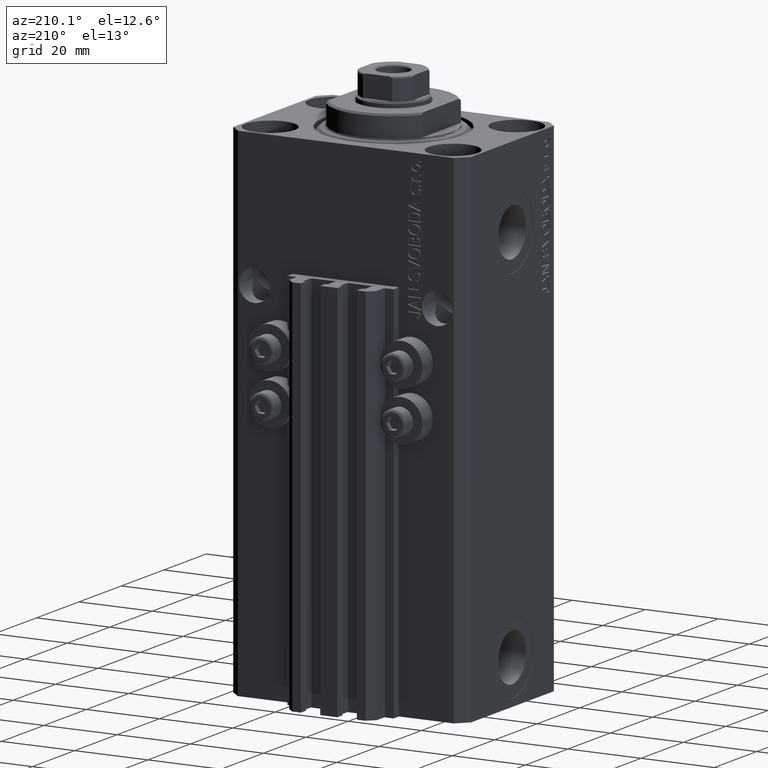
[diagram: clean part render]
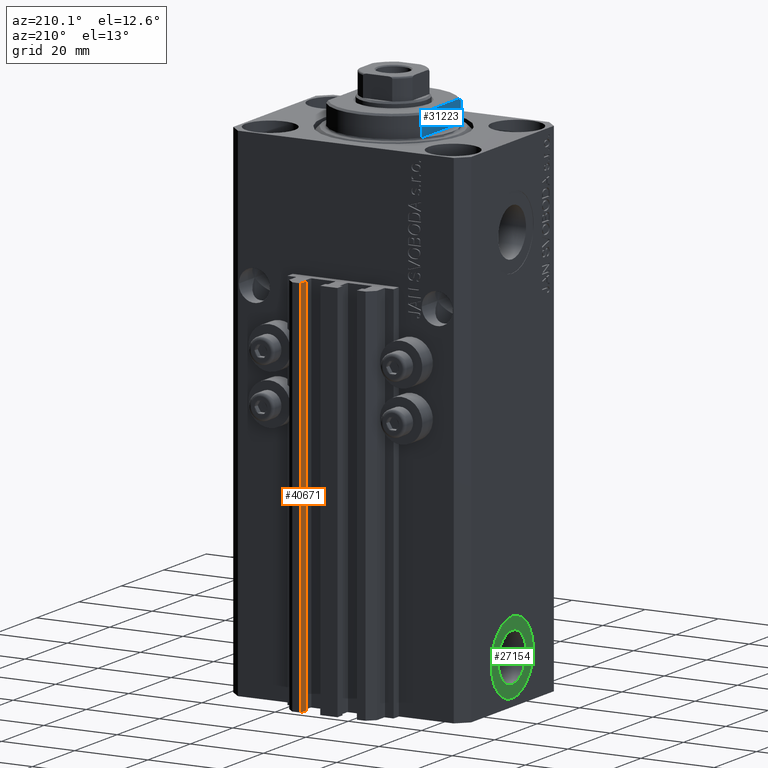
[diagram: same view with three faces highlighted in distinct colors, each labeled with its STEP entity id]
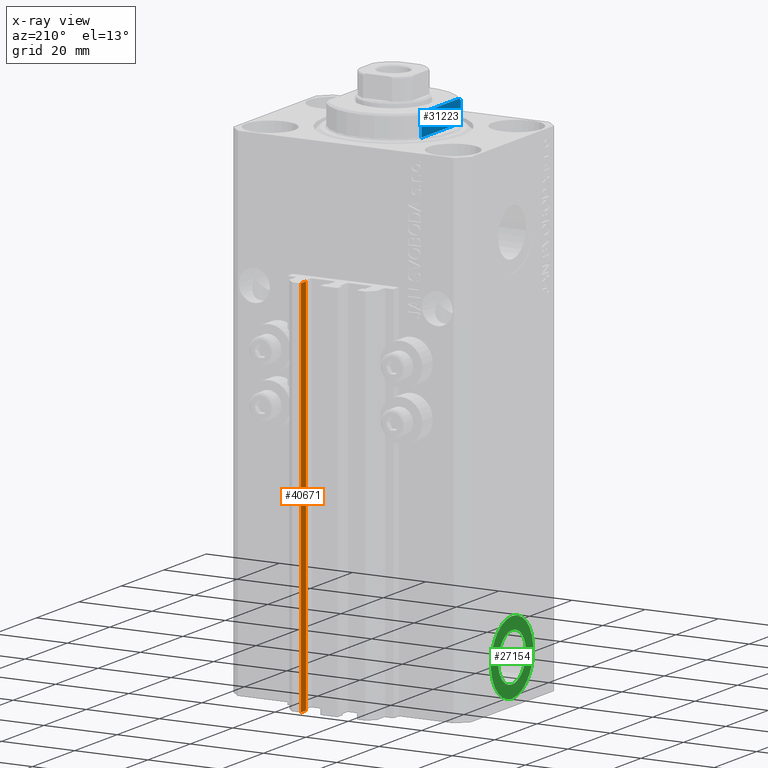
[diagram: x-ray of the same camera — body ghosted, the three highlighted faces saturated]
A machine part, auxiliary view with three faces highlighted in distinct colors.
The next image is the same camera in x-ray (body ghosted, the three faces saturated) — at least one of them is partly hidden behind the body in this view.
Their STEP definitions:

[orange] entity #40671 — the highlighted planar face has unit normal (-1, -0, 0).
#585 = ORIENTED_EDGE ( 'NONE', *, *, #30163, .T. ) ;
#1354 = CARTESIAN_POINT ( 'NONE',  ( 7.649999999999995026, 30.49999999999949196, -137.0000000000000000 ) ) ;
#1510 = ORIENTED_EDGE ( 'NONE', *, *, #45254, .T. ) ;
#4749 = EDGE_CURVE ( 'NONE', #39883, #4803, #15940, .T. ) ;
#4803 = VERTEX_POINT ( 'NONE', #19052 ) ;
#6301 = CARTESIAN_POINT ( 'NONE',  ( 7.649999999999995026, 30.49999999999949196, -33.00000000000000000 ) ) ;
#9889 = DIRECTION ( 'NONE',  ( 0.000000000000000000, 0.000000000000000000, 1.000000000000000000 ) ) ;
#14543 = VECTOR ( 'NONE', #24475, 1000.000000000000000 ) ;
#14730 = PLANE ( 'NONE',  #21658 ) ;
#15940 = LINE ( 'NONE', #44082, #43023 ) ;
#18310 = FACE_OUTER_BOUND ( 'NONE', #23100, .T. ) ;
#18539 = LINE ( 'NONE', #28794, #18569 ) ;
#18569 = VECTOR ( 'NONE', #40232, 1000.000000000000000 ) ;
#19052 = CARTESIAN_POINT ( 'NONE',  ( 7.649999999999995914, 28.09999999999950404, -33.00000000000000000 ) ) ;
#20677 = LINE ( 'NONE', #46873, #14543 ) ;
#21658 = AXIS2_PLACEMENT_3D ( 'NONE', #29276, #43816, #25693 ) ;
#22759 = ORIENTED_EDGE ( 'NONE', *, *, #4749, .F. ) ;
#23100 = EDGE_LOOP ( 'NONE', ( #22759, #32605, #1510, #585 ) ) ;
#24475 = DIRECTION ( 'NONE',  ( 3.614007241618365534E-16, -1.000000000000000000, 0.000000000000000000 ) ) ;
#25693 = DIRECTION ( 'NONE',  ( 3.614007241618365534E-16, -1.000000000000000000, 0.000000000000000000 ) ) ;
#28225 = VERTEX_POINT ( 'NONE', #34667 ) ;
#28794 = CARTESIAN_POINT ( 'NONE',  ( 7.649999999999995026, 30.49999999999949196, -137.0000000000000000 ) ) ;
#29276 = CARTESIAN_POINT ( 'NONE',  ( 7.649999999999995026, 30.49999999999949196, -137.0000000000000000 ) ) ;
#30163 = EDGE_CURVE ( 'NONE', #28225, #4803, #31841, .T. ) ;
#31841 = LINE ( 'NONE', #46376, #41987 ) ;
#32605 = ORIENTED_EDGE ( 'NONE', *, *, #39765, .F. ) ;
#34667 = CARTESIAN_POINT ( 'NONE',  ( 7.649999999999995914, 28.09999999999950404, -137.0000000000000000 ) ) ;
#36215 = VERTEX_POINT ( 'NONE', #1354 ) ;
#39765 = EDGE_CURVE ( 'NONE', #36215, #39883, #18539, .T. ) ;
#39883 = VERTEX_POINT ( 'NONE', #6301 ) ;
#40232 = DIRECTION ( 'NONE',  ( 0.000000000000000000, 0.000000000000000000, 1.000000000000000000 ) ) ;
#40671 = ADVANCED_FACE ( 'NONE', ( #18310 ), #14730, .T. ) ;
#41987 = VECTOR ( 'NONE', #9889, 1000.000000000000000 ) ;
#43023 = VECTOR ( 'NONE', #44565, 1000.000000000000000 ) ;
#43816 = DIRECTION ( 'NONE',  ( -1.000000000000000000, -3.614007241618365534E-16, 0.000000000000000000 ) ) ;
#44082 = CARTESIAN_POINT ( 'NONE',  ( 7.649999999999995026, 30.49999999999949196, -33.00000000000000000 ) ) ;
#44565 = DIRECTION ( 'NONE',  ( 3.614007241618365534E-16, -1.000000000000000000, 0.000000000000000000 ) ) ;
#45254 = EDGE_CURVE ( 'NONE', #36215, #28225, #20677, .T. ) ;
#46376 = CARTESIAN_POINT ( 'NONE',  ( 7.649999999999995914, 28.09999999999950404, -137.0000000000000000 ) ) ;
#46873 = CARTESIAN_POINT ( 'NONE',  ( 7.649999999999995026, 30.49999999999949196, -137.0000000000000000 ) ) ;

[blue] entity #31223 — the highlighted planar face has unit normal (-1, 0, 0).
#331 = DIRECTION ( 'NONE',  ( 1.000000000000000000, 0.000000000000000000, -0.000000000000000000 ) ) ;
#1114 = CARTESIAN_POINT ( 'NONE',  ( 13.00000000000000000, 8.440971508067137918, -6.500000000000000000 ) ) ;
#1597 = CARTESIAN_POINT ( 'NONE',  ( 13.00000000000000000, -9.327379053088815652, -6.000000000000030198 ) ) ;
#1963 = CARTESIAN_POINT ( 'NONE',  ( 13.00000000000000000, -8.440971508067137918, -6.500000000000000000 ) ) ;
#2447 = ORIENTED_EDGE ( 'NONE', *, *, #19374, .T. ) ;
#3683 = B_SPLINE_CURVE_WITH_KNOTS ( 'NONE', 3,
 ( #27839, #5170, #38111, #1597 ),
 .UNSPECIFIED., .F., .F.,
 ( 4, 4 ),
 ( 0.04915043732154494860, 0.05017913261572036487 ),
 .UNSPECIFIED. ) ;
#4446 = DIRECTION ( 'NONE',  ( -0.000000000000000000, -0.000000000000000000, 1.000000000000000000 ) ) ;
#5170 = CARTESIAN_POINT ( 'NONE',  ( 13.00000000000000000, -8.738941625005656633, -6.337731789204291033 ) ) ;
#7185 = CARTESIAN_POINT ( 'NONE',  ( 13.00000000000000000, 9.327379053088815652, -0.4999999999999995559 ) ) ;
#7958 = PLANE ( 'NONE',  #34429 ) ;
#8785 = ORIENTED_EDGE ( 'NONE', *, *, #45839, .F. ) ;
#9069 = DIRECTION ( 'NONE',  ( 0.000000000000000000, -1.000000000000000000, -0.000000000000000000 ) ) ;
#10531 = VECTOR ( 'NONE', #4446, 1000.000000000000000 ) ;
#11607 = CARTESIAN_POINT ( 'NONE',  ( 13.00000000000000000, 9.327379053088813876, -6.500000000000000000 ) ) ;
#13558 = VERTEX_POINT ( 'NONE', #7185 ) ;
#14551 = VECTOR ( 'NONE', #35722, 1000.000000000000000 ) ;
#15369 = FACE_OUTER_BOUND ( 'NONE', #30505, .T. ) ;
#16993 = CARTESIAN_POINT ( 'NONE',  ( 13.00000000000000000, 8.738667591047022398, -6.337881022290552835 ) ) ;
#19374 = EDGE_CURVE ( 'NONE', #37987, #13558, #29036, .T. ) ;
#20598 = ORIENTED_EDGE ( 'NONE', *, *, #39031, .F. ) ;
#20869 = VERTEX_POINT ( 'NONE', #38436 ) ;
#20939 = LINE ( 'NONE', #35495, #14551 ) ;
#21448 = DIRECTION ( 'NONE',  ( 0.000000000000000000, -1.000000000000000000, -0.000000000000000000 ) ) ;
#22135 = VECTOR ( 'NONE', #21448, 1000.000000000000000 ) ;
#23628 = CARTESIAN_POINT ( 'NONE',  ( 13.00000000000000000, -43.08131845707602992, -6.500000000000000000 ) ) ;
#25024 = LINE ( 'NONE', #39573, #22135 ) ;
#27839 = CARTESIAN_POINT ( 'NONE',  ( 13.00000000000000000, -8.440971508067137918, -6.500000000000000000 ) ) ;
#28278 = VERTEX_POINT ( 'NONE', #1963 ) ;
#28726 = EDGE_CURVE ( 'NONE', #13558, #32322, #25024, .T. ) ;
#29036 = LINE ( 'NONE', #11607, #10531 ) ;
#29441 = DIRECTION ( 'NONE',  ( -0.000000000000000000, 0.000000000000000000, -1.000000000000000000 ) ) ;
#29917 = EDGE_CURVE ( 'NONE', #32322, #20869, #20939, .T. ) ;
#30505 = EDGE_LOOP ( 'NONE', ( #2447, #32519, #40655, #20598, #34001, #8785 ) ) ;
#30797 = LINE ( 'NONE', #23628, #39697 ) ;
#31223 = ADVANCED_FACE ( 'NONE', ( #15369 ), #7958, .T. ) ;
#31300 = CARTESIAN_POINT ( 'NONE',  ( 13.00000000000000000, 9.034035639617135516, -6.171007825636153576 ) ) ;
#31317 = B_SPLINE_CURVE_WITH_KNOTS ( 'NONE', 3,
 ( #46532, #31300, #16993, #46072 ),
 .UNSPECIFIED., .F., .F.,
 ( 4, 4 ),
 ( 0.03031084603841415620, 0.03132841702658697297 ),
 .UNSPECIFIED. ) ;
#32322 = VERTEX_POINT ( 'NONE', #37090 ) ;
#32519 = ORIENTED_EDGE ( 'NONE', *, *, #28726, .T. ) ;
#34001 = ORIENTED_EDGE ( 'NONE', *, *, #44913, .F. ) ;
#34429 = AXIS2_PLACEMENT_3D ( 'NONE', #40643, #331, #29441 ) ;
#35495 = CARTESIAN_POINT ( 'NONE',  ( 13.00000000000000000, -9.327379053088813876, -6.500000000000000000 ) ) ;
#35722 = DIRECTION ( 'NONE',  ( 0.000000000000000000, 0.000000000000000000, -1.000000000000000000 ) ) ;
#37090 = CARTESIAN_POINT ( 'NONE',  ( 13.00000000000000000, -9.327379053088815652, -0.4999999999999995559 ) ) ;
#37987 = VERTEX_POINT ( 'NONE', #38858 ) ;
#38111 = CARTESIAN_POINT ( 'NONE',  ( 13.00000000000000000, -9.034292940839595332, -6.170857829009071871 ) ) ;
#38200 = VERTEX_POINT ( 'NONE', #1114 ) ;
#38436 = CARTESIAN_POINT ( 'NONE',  ( 13.00000000000000000, -9.327379053088815652, -6.000000000000030198 ) ) ;
#38858 = CARTESIAN_POINT ( 'NONE',  ( 13.00000000000000000, 9.327379053088916905, -6.000000000000021316 ) ) ;
#39031 = EDGE_CURVE ( 'NONE', #28278, #20869, #3683, .T. ) ;
#39573 = CARTESIAN_POINT ( 'NONE',  ( 13.00000000000000000, -43.08131845707602992, -0.4999999999999995559 ) ) ;
#39697 = VECTOR ( 'NONE', #9069, 1000.000000000000000 ) ;
#40643 = CARTESIAN_POINT ( 'NONE',  ( 13.00000000000000000, -43.08131845707602992, -0.4999999999999995559 ) ) ;
#40655 = ORIENTED_EDGE ( 'NONE', *, *, #29917, .T. ) ;
#44913 = EDGE_CURVE ( 'NONE', #38200, #28278, #30797, .T. ) ;
#45839 = EDGE_CURVE ( 'NONE', #37987, #38200, #31317, .T. ) ;
#46072 = CARTESIAN_POINT ( 'NONE',  ( 13.00000000000000000, 8.440971508067137918, -6.500000000000000000 ) ) ;
#46532 = CARTESIAN_POINT ( 'NONE',  ( 13.00000000000000000, 9.327379053088916905, -6.000000000000021316 ) ) ;

[green] entity #27154 — the highlighted planar face has unit normal (-1, 0, 0).
#1615 = FACE_OUTER_BOUND ( 'NONE', #3830, .T. ) ;
#3830 = EDGE_LOOP ( 'NONE', ( #11352, #30757 ) ) ;
#4599 = CARTESIAN_POINT ( 'NONE',  ( -32.39999999999650271, -1.530808498934191561E-14, -125.0000000000000000 ) ) ;
#4712 = PLANE ( 'NONE',  #29707 ) ;
#5421 = DIRECTION ( 'NONE',  ( 0.000000000000000000, 0.000000000000000000, 1.000000000000000000 ) ) ;
#6017 = AXIS2_PLACEMENT_3D ( 'NONE', #44782, #25933, #8747 ) ;
#6636 = DIRECTION ( 'NONE',  ( -1.000000000000000000, 0.000000000000000000, 0.000000000000000000 ) ) ;
#7321 = CIRCLE ( 'NONE', #40845, 6.580000000000002736 ) ;
#8747 = DIRECTION ( 'NONE',  ( 0.000000000000000000, 0.000000000000000000, 1.000000000000000000 ) ) ;
#9615 = AXIS2_PLACEMENT_3D ( 'NONE', #42668, #6636, #13356 ) ;
#10498 = CARTESIAN_POINT ( 'NONE',  ( -32.39999999999650271, -1.408343819019456097E-14, -135.0000000000000000 ) ) ;
#11086 = EDGE_CURVE ( 'NONE', #24945, #11655, #7321, .T. ) ;
#11352 = ORIENTED_EDGE ( 'NONE', *, *, #45234, .T. ) ;
#11508 = CIRCLE ( 'NONE', #20650, 9.999999999999994671 ) ;
#11655 = VERTEX_POINT ( 'NONE', #11699 ) ;
#11699 = CARTESIAN_POINT ( 'NONE',  ( -32.39999999999650271, -1.450226739550295657E-14, -131.5800000000000125 ) ) ;
#11812 = EDGE_CURVE ( 'NONE', #11655, #24945, #33259, .T. ) ;
#13356 = DIRECTION ( 'NONE',  ( 0.000000000000000000, 0.000000000000000000, 1.000000000000000000 ) ) ;
#14455 = CIRCLE ( 'NONE', #6017, 9.999999999999994671 ) ;
#17453 = CARTESIAN_POINT ( 'NONE',  ( -32.39999999999650271, -1.530808498934191561E-14, -115.0000000000000000 ) ) ;
#19066 = FACE_BOUND ( 'NONE', #39319, .T. ) ;
#20650 = AXIS2_PLACEMENT_3D ( 'NONE', #39264, #43065, #42359 ) ;
#22170 = EDGE_CURVE ( 'NONE', #32923, #23046, #14455, .T. ) ;
#23046 = VERTEX_POINT ( 'NONE', #17453 ) ;
#24945 = VERTEX_POINT ( 'NONE', #45155 ) ;
#25933 = DIRECTION ( 'NONE',  ( -1.000000000000000000, 0.000000000000000000, 0.000000000000000000 ) ) ;
#26332 = DIRECTION ( 'NONE',  ( -1.000000000000000000, 0.000000000000000000, 0.000000000000000000 ) ) ;
#27154 = ADVANCED_FACE ( 'NONE', ( #19066, #1615 ), #4712, .T. ) ;
#29707 = AXIS2_PLACEMENT_3D ( 'NONE', #38129, #33616, #5421 ) ;
#30036 = ORIENTED_EDGE ( 'NONE', *, *, #11086, .F. ) ;
#30148 = DIRECTION ( 'NONE',  ( 0.000000000000000000, 0.000000000000000000, 1.000000000000000000 ) ) ;
#30757 = ORIENTED_EDGE ( 'NONE', *, *, #22170, .T. ) ;
#32923 = VERTEX_POINT ( 'NONE', #10498 ) ;
#33259 = CIRCLE ( 'NONE', #9615, 6.580000000000002736 ) ;
#33616 = DIRECTION ( 'NONE',  ( -1.000000000000000000, 0.000000000000000000, 0.000000000000000000 ) ) ;
#34572 = ORIENTED_EDGE ( 'NONE', *, *, #11812, .F. ) ;
#38129 = CARTESIAN_POINT ( 'NONE',  ( -32.39999999999650271, -1.530808498934191561E-14, -125.0000000000000000 ) ) ;
#39264 = CARTESIAN_POINT ( 'NONE',  ( -32.39999999999650271, -1.530808498934191561E-14, -125.0000000000000000 ) ) ;
#39319 = EDGE_LOOP ( 'NONE', ( #30036, #34572 ) ) ;
#40845 = AXIS2_PLACEMENT_3D ( 'NONE', #4599, #26332, #30148 ) ;
#42359 = DIRECTION ( 'NONE',  ( 0.000000000000000000, 0.000000000000000000, 1.000000000000000000 ) ) ;
#42668 = CARTESIAN_POINT ( 'NONE',  ( -32.39999999999650271, -1.530808498934191561E-14, -125.0000000000000000 ) ) ;
#43065 = DIRECTION ( 'NONE',  ( -1.000000000000000000, 0.000000000000000000, 0.000000000000000000 ) ) ;
#44782 = CARTESIAN_POINT ( 'NONE',  ( -32.39999999999650271, -1.530808498934191561E-14, -125.0000000000000000 ) ) ;
#45155 = CARTESIAN_POINT ( 'NONE',  ( -32.39999999999650271, -1.530808498934191561E-14, -118.4200000000000017 ) ) ;
#45234 = EDGE_CURVE ( 'NONE', #23046, #32923, #11508, .T. ) ;